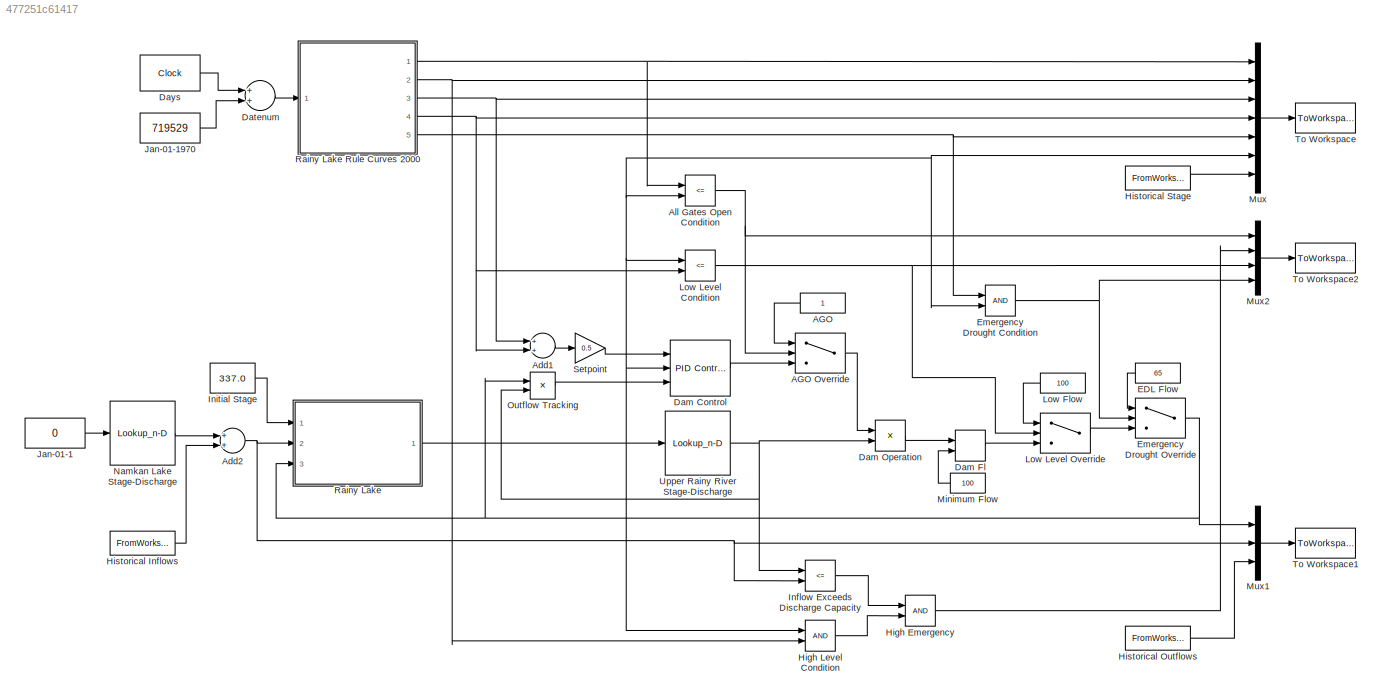
MODEL slx_477251c61417
KIND model
BLOCK [Constant] AGO
BLOCK [Switch] AGO Override
  Criteria = u2 > Threshold
  InputSameDT = off
  SaturateOnIntegerOverflow = off
BLOCK [Sum] Add1
  InputSameDT = off
  OutDataTypeStr = Inherit: Inherit via internal rule
  Ports = [2, 1]
  SaturateOnIntegerOverflow = off
BLOCK [Sum] Add2
  InputSameDT = off
  OutDataTypeStr = Inherit: Inherit via internal rule
  Ports = [2, 1]
  SaturateOnIntegerOverflow = off
BLOCK [RelationalOperator] All Gates Open Condition
  InputSameDT = off
  Operator = <=
  OutDataTypeStr = boolean
  Ports = [2, 1]
BLOCK [Reference] Dam Control  REF=simulink/Continuous/PID Controller (2DOF)
  AntiWindupMode = clamping
  Controller = PID
  D = 3.65832815289677
  DOutDataTypeStr = Inherit: Inherit via internal rule
  DOutMax = []
  DOutMin = []
  DParamDataTypeStr = Inherit: Inherit via internal rule
  DParamMax = []
  DParamMin = []
  DifferentiatorICPrevScaledInput = 0
  DifferentiatorOutDataTypeStr = Inherit: Inherit via internal rule
  DifferentiatorOutMax = []
  DifferentiatorOutMin = []
  ExternalReset = none
  FilterContinuousStateAttributes = ''
  FilterMethod = Forward Euler
  FilterOutDataTypeStr = Inherit: Inherit via internal rule
  FilterOutMax = []
  FilterOutMin = []
  FilterRTWStateStorageClass = Auto
  FilterStateMustResolveToSignalObject = off
  Form = Parallel
  I = -0.0682382435942277
  IOutDataTypeStr = Inherit: Inherit via internal rule
  IOutMax = []
  IOutMin = []
  IParamDataTypeStr = Inherit: Inherit via internal rule
  IParamMax = []
  IParamMin = []
  IgnoreLimit = off
  InitialConditionForFilter = 0
  InitialConditionForIntegrator = 0
  InitialConditionSource = internal
  IntegratorContinuousStateAttributes = ''
  IntegratorMethod = Forward Euler
  IntegratorOutDataTypeStr = Inherit: Inherit via internal rule
  IntegratorOutMax = []
  IntegratorOutMin = []
  IntegratorRTWStateStorageClass = Auto
  IntegratorStateMustResolveToSignalObject = off
  Kb = 1
  KbOutDataTypeStr = Inherit: Inherit via internal rule
  KbOutMax = []
  KbOutMin = []
  KbParamDataTypeStr = Inherit: Inherit via internal rule
  KbParamMax = []
  KbParamMin = []
  Kt = 1
  KtOutDataTypeStr = Inherit: Inherit via internal rule
  KtOutMax = []
  KtOutMin = []
  KtParamDataTypeStr = Inherit: Inherit via internal rule
  KtParamMax = []
  KtParamMin = []
  LimitOutput = on
  LinearizeAsGain = off
  LockScale = off
  LowerSaturationLimit = 0
  N = 2.12291335792304
  NOutDataTypeStr = Inherit: Inherit via internal rule
  NOutMax = []
  NOutMin = []
  NParamDataTypeStr = Inherit: Inherit via internal rule
  NParamMax = []
  NParamMin = []
  P = -7.76631370345045
  POutDataTypeStr = Inherit: Inherit via internal rule
  POutMax = []
  POutMin = []
  PParamDataTypeStr = Inherit: Inherit via internal rule
  PParamMax = []
  PParamMin = []
  Ports = [3, 1]
  RndMeth = Floor
  SampleTime = -1
  SaturateOnIntegerOverflow = off
  SaturationOutDataTypeStr = Inherit: Same as input
  SaturationOutMax = []
  SaturationOutMin = []
  SourceBlock = simulink/Continuous/PID Controller (2DOF)
  SourceType = PID 2dof
  Sum1AccumDataTypeStr = Inherit: Inherit via internal rule
  Sum1OutDataTypeStr = Inherit: Inherit via internal rule
  Sum1OutMax = []
  Sum1OutMin = []
  Sum2AccumDataTypeStr = Inherit: Inherit via internal rule
  Sum2OutDataTypeStr = Inherit: Inherit via internal rule
  Sum2OutMax = []
  Sum2OutMin = []
  Sum3AccumDataTypeStr = Inherit: Inherit via internal rule
  Sum3OutDataTypeStr = Inherit: Inherit via internal rule
  Sum3OutMax = []
  Sum3OutMin = []
  SumAccumDataTypeStr = Inherit: Inherit via internal rule
  SumDAccumDataTypeStr = Inherit: Inherit via internal rule
  SumDOutDataTypeStr = Inherit: Inherit via internal rule
  SumDOutMax = []
  SumDOutMin = []
  SumI1AccumDataTypeStr = Inherit: Inherit via internal rule
  SumI1OutDataTypeStr = Inherit: Inherit via internal rule
  SumI1OutMax = []
  SumI1OutMin = []
  SumI2AccumDataTypeStr = Inherit: Inherit via internal rule
  SumI2OutDataTypeStr = Inherit: Inherit via internal rule
  SumI2OutMax = []
  SumI2OutMin = []
  SumI3AccumDataTypeStr = Inherit: Inherit via internal rule
  SumI3OutDataTypeStr = Inherit: Inherit via internal rule
  SumI3OutMax = []
  SumI3OutMin = []
  SumOutDataTypeStr = Inherit: Inherit via internal rule
  SumOutMax = []
  SumOutMin = []
  TimeDomain = Continuous-time
  TrackingMode = on
  UpperSaturationLimit = 1
  UseFilter = on
  ZeroCross = on
  b = 1
  bOutDataTypeStr = Inherit: Inherit via internal rule
  bOutMax = []
  bOutMin = []
  bParamDataTypeStr = Inherit: Inherit via internal rule
  bParamMax = []
  bParamMin = []
  c = 0
  cOutDataTypeStr = Inherit: Inherit via internal rule
  cOutMax = []
  cOutMin = []
  cParamDataTypeStr = Inherit: Inherit via internal rule
  cParamMax = []
  cParamMin = []
BLOCK [MinMax] Dam Fl
  Function = max
  InputSameDT = off
  Inputs = 2
  Ports = [2, 1]
  SaturateOnIntegerOverflow = off
BLOCK [Product] Dam Operation
  InputSameDT = off
  OutDataTypeStr = Inherit: Inherit via internal rule
  Ports = [2, 1]
  RndMeth = Floor
  SaturateOnIntegerOverflow = off
BLOCK [Sum] Datenum
  InputSameDT = off
  OutDataTypeStr = Inherit: Inherit via internal rule
  Ports = [2, 1]
  SaturateOnIntegerOverflow = off
BLOCK [Clock] Days
  Decimation = 1
  DisplayTime = on
BLOCK [Constant] EDL Flow
  Value = 65
BLOCK [RelationalOperator] Emergency Drought Condition
  InputSameDT = off
  OutDataTypeStr = boolean
  Ports = [2, 1]
BLOCK [Switch] Emergency Drought Override
  Criteria = u2 > Threshold
  InputSameDT = off
  SaturateOnIntegerOverflow = off
BLOCK [Logic] High Emergency
  AllPortsSameDT = off
  OutDataTypeStr = boolean
  Ports = [2, 1]
BLOCK [RelationalOperator] High Level Condition
  InputSameDT = off
  OutDataTypeStr = boolean
  Ports = [2, 1]
BLOCK [FromWorkspace] Historical Inflows
  SampleTime = 1
  VariableName = I
  ZeroCross = on
BLOCK [FromWorkspace] Historical Outflows
  SampleTime = 1
  VariableName = O
  ZeroCross = on
BLOCK [FromWorkspace] Historical Stage
  SampleTime = 1
  VariableName = H
  ZeroCross = on
BLOCK [RelationalOperator] Inflow Exceeds Discharge Capacity
  InputSameDT = off
  Operator = <=
  OutDataTypeStr = boolean
  Ports = [2, 1]
BLOCK [Constant] Initial Stage
  Value = 337.0
BLOCK [Constant] Jan-01-1
  Value = 0
BLOCK [Constant] Jan-01-1970
  Value = 719529
BLOCK [Constant] Low Flow
  Value = 100
BLOCK [RelationalOperator] Low Level Condition
  InputSameDT = off
  Operator = <=
  OutDataTypeStr = boolean
  Ports = [2, 1]
BLOCK [Switch] Low Level Override
  Criteria = u2 > Threshold
  InputSameDT = off
  SaturateOnIntegerOverflow = off
BLOCK [Constant] Minimum Flow
  Value = 100
BLOCK [Mux] Mux
  DisplayOption = bar
  Inputs = 7
  Ports = [7, 1]
BLOCK [Mux] Mux1
  DisplayOption = bar
  Inputs = 3
  Ports = [3, 1]
BLOCK [Mux] Mux2
  DisplayOption = bar
  Ports = [4, 1]
BLOCK [Lookup_n-D] Namkan Lake Stage-Discharge
  BreakpointsForDimension1 = [335.21, 337.0, 338.0, 338.5, 339.0, 339.5, 340.0, 340.5, 341.0, 341.5, 342.0, 342.5, 343.0]
  ExtrapMethod = Clip
  InternalRulePriority = Speed
  NumberOfTableDimensions = 1
  Ports = [1, 1]
  RndMeth = Simplest
  Table = [0 51 120 173 233 299 373 455 549 659 772 886 999]
BLOCK [Product] Outflow Tracking
  InputSameDT = off
  Inputs = */
  OutDataTypeStr = Inherit: Inherit via internal rule
  Ports = [2, 1]
  RndMeth = Floor
  SaturateOnIntegerOverflow = off
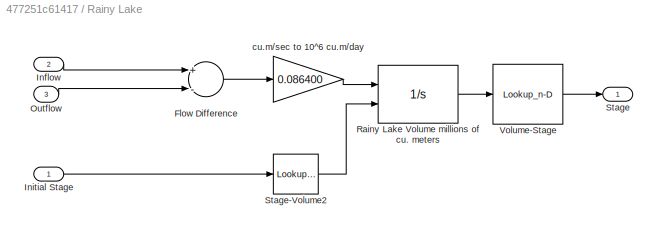
BLOCK [SubSystem] Rainy Lake
  Ports = [3, 1]
  RequestExecContextInheritance = off
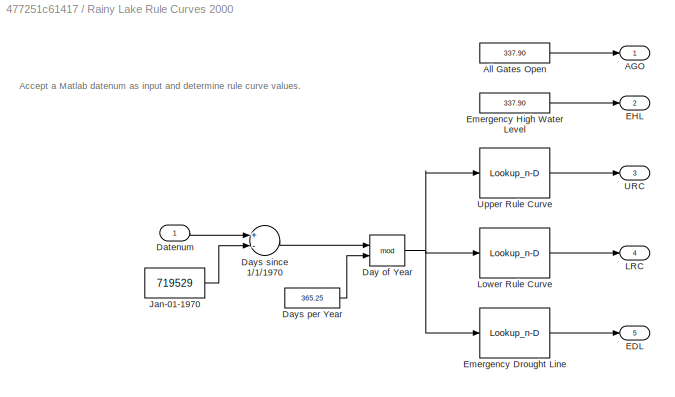
BLOCK [SubSystem] Rainy Lake Rule Curves 2000
  Ports = [1, 5]
  RequestExecContextInheritance = off
BLOCK [Outport] Rainy Lake Rule Curves 2000/AGO
  IconDisplay = Port number
BLOCK [Constant] Rainy Lake Rule Curves 2000/All Gates Open
  Value = 337.90
BLOCK [Inport] Rainy Lake Rule Curves 2000/Datenum
  IconDisplay = Port number
BLOCK [Math] Rainy Lake Rule Curves 2000/Day of Year
  Operator = mod
  Ports = [2, 1]
BLOCK [Constant] Rainy Lake Rule Curves 2000/Days per Year
  Value = 365.25
BLOCK [Sum] Rainy Lake Rule Curves 2000/Days since 1//1//1970
  InputSameDT = off
  Inputs = +-
  OutDataTypeStr = Inherit: Inherit via internal rule
  Ports = [2, 1]
  SaturateOnIntegerOverflow = off
BLOCK [Outport] Rainy Lake Rule Curves 2000/EDL
  IconDisplay = Port number
  Port = 5
BLOCK [Outport] Rainy Lake Rule Curves 2000/EHL
  IconDisplay = Port number
  Port = 2
BLOCK [Lookup_n-D] Rainy Lake Rule Curves 2000/Emergency Drought Line
  BreakpointsForDimension1 = [0 91 181 182 297 366]
  InternalRulePriority = Speed
  NumberOfTableDimensions = 1
  Ports = [1, 1]
  RndMeth = Simplest
  Table = [336.90 336.70 336.70 337.20 337.20 336.90]
BLOCK [Constant] Rainy Lake Rule Curves 2000/Emergency High Water Level
  Value = 337.90
BLOCK [Constant] Rainy Lake Rule Curves 2000/Jan-01-1970
  Value = 719529
BLOCK [Outport] Rainy Lake Rule Curves 2000/LRC
  IconDisplay = Port number
  Port = 4
BLOCK [Lookup_n-D] Rainy Lake Rule Curves 2000/Lower Rule Curve
  BreakpointsForDimension1 = [0 91 121 152 182 227 335 366]
  InternalRulePriority = Speed
  NumberOfTableDimensions = 1
  Ports = [1, 1]
  RndMeth = Simplest
  Table = [337.20 336.70 336.80 337.30 337.50 337.50 337.30 337.20]
BLOCK [Outport] Rainy Lake Rule Curves 2000/URC
  IconDisplay = Port number
  Port = 3
BLOCK [Lookup_n-D] Rainy Lake Rule Curves 2000/Upper Rule Curve
  BreakpointsForDimension1 = [0 91 121 152 182 227 335 366]
  InternalRulePriority = Speed
  NumberOfTableDimensions = 1
  Ports = [1, 1]
  RndMeth = Simplest
  Table = [337.45 337.0  337.40 337.60 337.75 337.75 337.60 337.45]
BLOCK [Sum] Rainy Lake/Flow Difference
  InputSameDT = off
  Inputs = +-
  OutDataTypeStr = Inherit: Inherit via internal rule
  Ports = [2, 1]
  SaturateOnIntegerOverflow = off
BLOCK [Inport] Rainy Lake/Inflow
  IconDisplay = Port number
  Port = 2
BLOCK [Inport] Rainy Lake/Initial Stage
  IconDisplay = Port number
BLOCK [Inport] Rainy Lake/Outflow
  IconDisplay = Port number
  Port = 3
BLOCK [Integrator] Rainy Lake/Rainy Lake Volume millions of cu. meters
  ContinuousStateAttributes = 'RainyLakeVolume'
  InitialCondition = 1000
  InitialConditionSource = external
  LimitOutput = on
  LowerSaturationLimit = 0
  Ports = [2, 1]
BLOCK [Outport] Rainy Lake/Stage
  IconDisplay = Port number
BLOCK [Lookup_n-D] Rainy Lake/Stage-Volume2
  BreakpointsForDimension1 = [335.0 336.0 336.5 337.0 337.5 338.0 339.0 340.0]
  InternalRulePriority = Speed
  NumberOfTableDimensions = 1
  Ports = [1, 1]
  RndMeth = Simplest
  Table = [112.67 798.00 1176.42 1577.25 2002.06 2450.57 3416.85 4458.97]
BLOCK [Lookup_n-D] Rainy Lake/Volume-Stage
  BreakpointsForDimension1 = [112.67 798.00 1176.42 1577.25 2002.06 2450.57 3416.85 4458.97]
  InternalRulePriority = Speed
  NumberOfTableDimensions = 1
  Ports = [1, 1]
  RndMeth = Simplest
  Table = [335.0 336.0 336.5 337.0 337.5 338.0 339.0 340.0]
BLOCK [Gain] Rainy Lake/cu.m//sec to 10^6 cu.m//day
  Gain = 0.086400
  OutDataTypeStr = Inherit: Inherit via internal rule
  ParamDataTypeStr = Inherit: Inherit via internal rule
  SaturateOnIntegerOverflow = off
BLOCK [Gain] Setpoint
  Gain = 0.5
  OutDataTypeStr = Inherit: Inherit via internal rule
  ParamDataTypeStr = Inherit: Inherit via internal rule
  SaturateOnIntegerOverflow = off
BLOCK [ToWorkspace] To Workspace
  FixptAsFi = on
  MaxDataPoints = inf
  Ports = [1]
  SampleTime = -1
  Save2DSignal = 3-D array (concatenate along third dimension)
  SaveFormat = Timeseries
  VariableName = levels
BLOCK [ToWorkspace] To Workspace1
  FixptAsFi = on
  MaxDataPoints = inf
  Ports = [1]
  SampleTime = -1
  Save2DSignal = 3-D array (concatenate along third dimension)
  SaveFormat = Timeseries
  VariableName = flows
BLOCK [ToWorkspace] To Workspace2
  FixptAsFi = on
  MaxDataPoints = inf
  Ports = [1]
  SampleTime = -1
  Save2DSignal = 3-D array (concatenate along third dimension)
  SaveFormat = Timeseries
  VariableName = conditions
BLOCK [Lookup_n-D] Upper Rainy River Stage-Discharge
  BreakpointsForDimension1 = [335.40, 336.00, 336.50, 336.75, 337.00, 337.25,  337.50, 337.75, 338.00, 338.50, 339.00, 339.50, 340.00]
  ExtrapMethod = Clip
  InternalRulePriority = Speed
  NumberOfTableDimensions = 1
  Ports = [1, 1]
  RndMeth = Simplest
  Table = [0 399 425 443 589 704 792 909 1014 1156 1324 1550 1778]
ANNOTATION Rainy Lake Rule Curves 2000: Accept a Matlab datenum as input and determine rule curve values.
LINE AGO Override:1 -> Dam Operation:1
LINE AGO:1 -> AGO Override:1
LINE Add1:1 -> Setpoint:1
NET Add2:1 -> Inflow Exceeds Discharge Capacity:2, Mux1:2, Rainy Lake:2
NET All Gates Open Condition:1 -> AGO Override:2, Mux2:1
LINE Dam Control:1 -> AGO Override:3
LINE Dam Fl:1 -> Low Level Override:3
LINE Dam Operation:1 -> Dam Fl:1
LINE Datenum:1 -> Rainy Lake Rule Curves 2000:1
LINE Days:1 -> Datenum:1
LINE EDL Flow:1 -> Emergency Drought Override:1
NET Emergency Drought Condition:1 -> Emergency Drought Override:2, Mux2:4
NET Emergency Drought Override:1 -> Mux1:1, Outflow Tracking:1, Rainy Lake:3
LINE High Emergency:1 -> Mux2:2
LINE High Level Condition:1 -> High Emergency:2
LINE Historical Inflows:1 -> Add2:2
LINE Historical Outflows:1 -> Mux1:3
LINE Historical Stage:1 -> Mux:7
LINE Inflow Exceeds Discharge Capacity:1 -> High Emergency:1
LINE Initial Stage:1 -> Rainy Lake:1
LINE Jan-01-1970:1 -> Datenum:2
LINE Jan-01-1:1 -> Namkan Lake Stage-Discharge:1
LINE Low Flow:1 -> Low Level Override:1
NET Low Level Condition:1 -> Low Level Override:2, Mux2:3
LINE Low Level Override:1 -> Emergency Drought Override:3
LINE Minimum Flow:1 -> Dam Fl:2
LINE Mux1:1 -> To Workspace1:1
LINE Mux2:1 -> To Workspace2:1
LINE Mux:1 -> To Workspace:1
LINE Namkan Lake Stage-Discharge:1 -> Add2:1
LINE Outflow Tracking:1 -> Dam Control:3
LINE Rainy Lake Rule Curves 2000/All Gates Open:1 -> Rainy Lake Rule Curves 2000/AGO:1
LINE Rainy Lake Rule Curves 2000/Datenum:1 -> Rainy Lake Rule Curves 2000/Days since 1//1//1970:1
NET Rainy Lake Rule Curves 2000/Day of Year:1 -> Rainy Lake Rule Curves 2000/Emergency Drought Line:1, Rainy Lake Rule Curves 2000/Lower Rule Curve:1, Rainy Lake Rule Curves 2000/Upper Rule Curve:1
LINE Rainy Lake Rule Curves 2000/Days per Year:1 -> Rainy Lake Rule Curves 2000/Day of Year:2
LINE Rainy Lake Rule Curves 2000/Days since 1//1//1970:1 -> Rainy Lake Rule Curves 2000/Day of Year:1
LINE Rainy Lake Rule Curves 2000/Emergency Drought Line:1 -> Rainy Lake Rule Curves 2000/EDL:1
LINE Rainy Lake Rule Curves 2000/Emergency High Water Level:1 -> Rainy Lake Rule Curves 2000/EHL:1
LINE Rainy Lake Rule Curves 2000/Jan-01-1970:1 -> Rainy Lake Rule Curves 2000/Days since 1//1//1970:2
LINE Rainy Lake Rule Curves 2000/Lower Rule Curve:1 -> Rainy Lake Rule Curves 2000/LRC:1
LINE Rainy Lake Rule Curves 2000/Upper Rule Curve:1 -> Rainy Lake Rule Curves 2000/URC:1
NET Rainy Lake Rule Curves 2000:1 -> All Gates Open Condition:1, Mux:1
NET Rainy Lake Rule Curves 2000:2 -> High Level Condition:2, Mux:2
NET Rainy Lake Rule Curves 2000:3 -> Add1:1, Mux:3
NET Rainy Lake Rule Curves 2000:4 -> Add1:2, Low Level Condition:2, Mux:4
NET Rainy Lake Rule Curves 2000:5 -> Emergency Drought Condition:1, Mux:5
LINE Rainy Lake/Flow Difference:1 -> Rainy Lake/cu.m//sec to 10^6 cu.m//day:1
LINE Rainy Lake/Inflow:1 -> Rainy Lake/Flow Difference:1
LINE Rainy Lake/Initial Stage:1 -> Rainy Lake/Stage-Volume2:1
LINE Rainy Lake/Outflow:1 -> Rainy Lake/Flow Difference:2
LINE Rainy Lake/Rainy Lake Volume millions of cu. meters:1 -> Rainy Lake/Volume-Stage:1
LINE Rainy Lake/Stage-Volume2:1 -> Rainy Lake/Rainy Lake Volume millions of cu. meters:2
LINE Rainy Lake/Volume-Stage:1 -> Rainy Lake/Stage:1
LINE Rainy Lake/cu.m//sec to 10^6 cu.m//day:1 -> Rainy Lake/Rainy Lake Volume millions of cu. meters:1
NET Rainy Lake:1 -> All Gates Open Condition:2, Dam Control:2, Emergency Drought Condition:2, High Level Condition:1, Low Level Condition:1, Mux:6, Upper Rainy River Stage-Discharge:1
LINE Setpoint:1 -> Dam Control:1
NET Upper Rainy River Stage-Discharge:1 -> Dam Operation:2, Inflow Exceeds Discharge Capacity:1, Outflow Tracking:2
note: NET lines group one-source signal fan-out (src -> all destinations, sorted); 1:1 wires keep LINE
